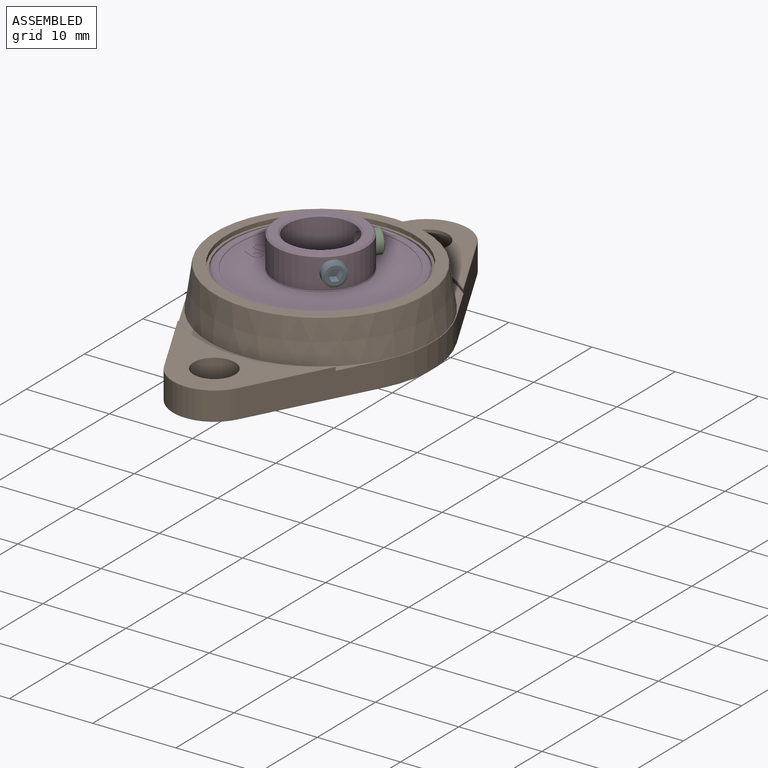
[diagram: assembled view]
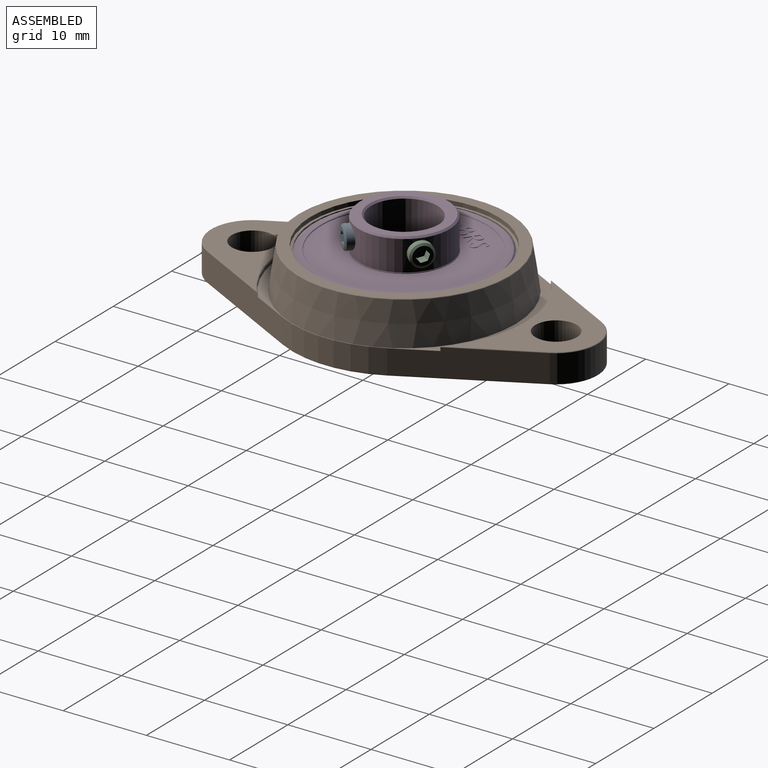
[diagram: assembled view, second angle]
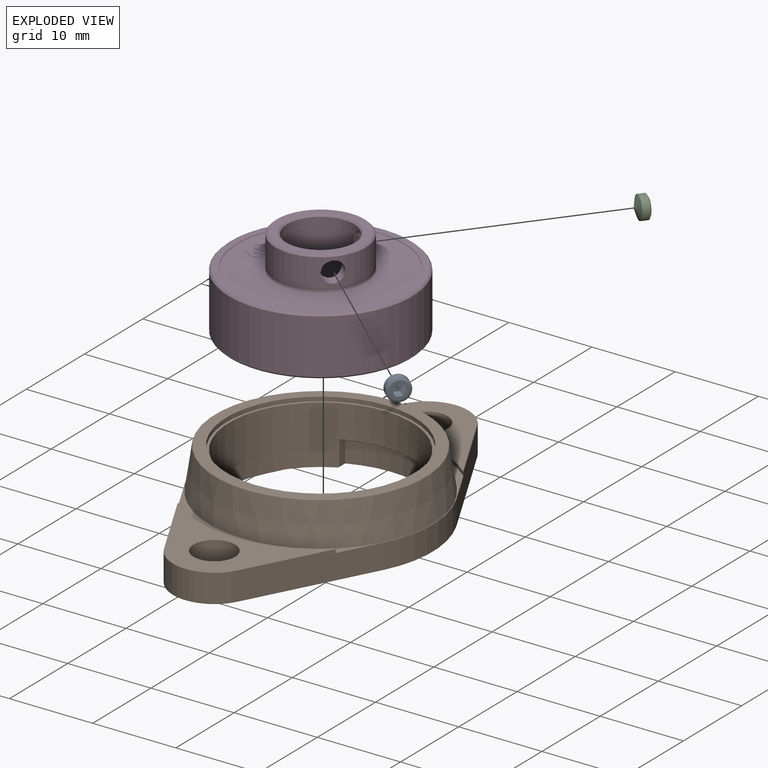
[diagram: exploded view]
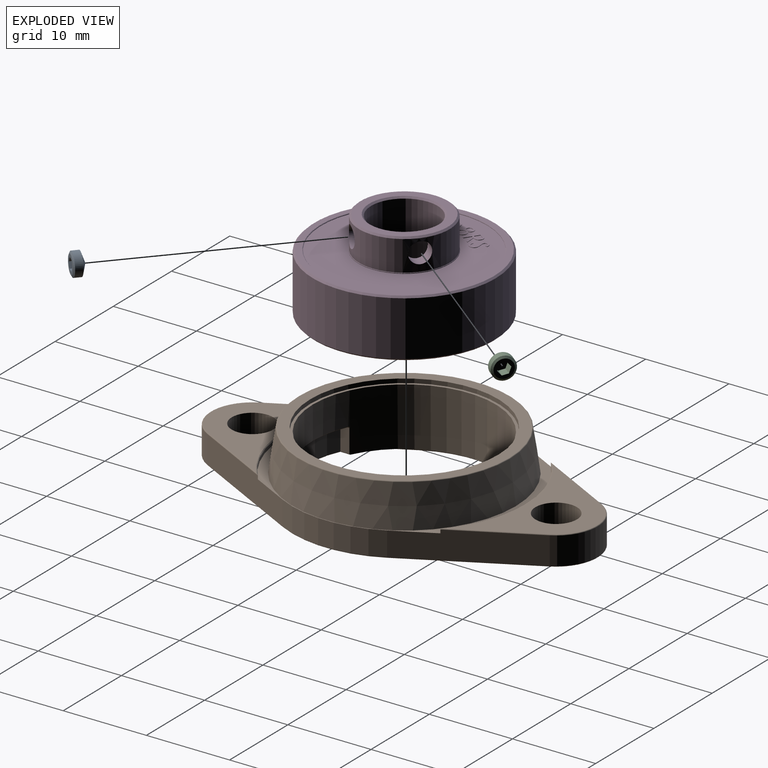
[diagram: exploded view, second angle]
ASSEMBLY  parts=4 mates=3
PART A: 11 faces, bbox 1.5x2.7x2.7 mm
  f0: cylinder r=1.36mm len=2.71mm, axis (-1,0,0), area 7.3mm2, adj f2,f10
  f1: plane 2.21x2.21mm, normal (-1,0,0), area 2.4mm2, adj f3,f4,f5,f6,f7,f8,f10
  f2: cone r=1.36mm half-angle=70deg, axis (-1,0,0), area 6.2mm2, adj f0
  f3: plane 1.2x0.75mm, normal (0,0,1), area 0.9mm2, adj f1,f4,f8,f9
  f4: plane 1.2x0.65mm, normal (0,-0.87,0.5), area 0.9mm2, adj f1,f3,f5,f9
  f5: plane 1.2x0.65mm, normal (0,-0.87,-0.5), area 0.9mm2, adj f1,f4,f6,f9
  f6: plane 1.2x0.75mm, normal (0,0,-1), area 0.9mm2, adj f1,f5,f7,f9
  f7: plane 1.2x0.65mm, normal (0,0.87,-0.5), area 0.9mm2, adj f1,f6,f8,f9
  f8: plane 1.2x0.65mm, normal (0,0.87,0.5), area 0.9mm2, adj f1,f3,f7,f9
  f9: plane 1.5x1.3mm, normal (-1,0,0), area 1.5mm2, adj f3,f4,f5,f6,f7,f8
  f10: cone r=1.1mm half-angle=60deg, axis (1,0,0), area 2.3mm2, adj f0,f1
PART B: 96 faces, bbox 29.2x47.3x8 mm
  f0: cylinder r=11mm len=22mm, axis (0,0,-1), area 422.2mm2, adj f13,f29,f40,f41,f44,f48,f51,f53
  f1: plane 29x27mm, normal (0,0,1), area 53mm2, adj f3,f4,f6,f7,f8,f10,f16,f17
  f2: plane 46.3x26.8mm, normal (0,0,-1), area 219.1mm2, adj f69,f70,f71,f72,f73,f74,f75,f76
  f3: cylinder r=13.5mm len=12.58mm, axis (0,0,-1), area 37.9mm2, adj f1,f4,f10,f75
  f4: plane 14.29x7.52mm, normal (-0.88,-0.47,0), area 51.2mm2, adj f1,f3,f5,f19,f77,f87
  f5: cylinder r=5mm len=8.85mm, axis (0,0,-1), area 35.8mm2, adj f4,f6,f76,f88
  f6: plane 14.29x7.52mm, normal (0.88,-0.47,0), area 51.2mm2, adj f1,f5,f7,f19,f74,f90
  f7: cylinder r=13.5mm len=12.58mm, axis (0,0,-1), area 37.9mm2, adj f1,f6,f8,f72
  f8: plane 14.29x7.52mm, normal (0.88,0.47,0), area 51.2mm2, adj f1,f7,f9,f17,f70,f91
  f9: cylinder r=5mm len=8.85mm, axis (0,0,-1), area 35.8mm2, adj f8,f10,f71,f92
  f10: plane 14.29x7.52mm, normal (-0.88,0.47,0), area 51.2mm2, adj f1,f3,f9,f17,f73,f94
  f11: cylinder r=2.5mm len=5mm, axis (0,0,-1), area 53.4mm2, adj f18,f78
  f12: cylinder r=2.5mm len=5mm, axis (0,0,-1), area 53.4mm2, adj f20,f69
  f13: plane 22.6x22.6mm, normal (0,0,1), area 21mm2, adj f0,f14
  f14: cylinder r=11.3mm len=22.6mm, axis (0,0,-1), area 35.5mm2, adj f13,f15
  f15: plane 25.18x25.18mm, normal (0,0,1), area 96.7mm2, adj f14,f95
  f16: cone r=12.68mm half-angle=8.5deg, axis (0,0,-1), area 407.7mm2, adj f1,f95
  f17: cylinder r=14.5mm len=18.96mm, axis (0,0,-1), area 8.3mm2, adj f1,f8,f10,f93
  f18: plane 18.32x11.78mm, normal (0,0,1), area 79.8mm2, adj f11,f91,f92,f93,f94
  f19: cylinder r=14.5mm len=18.96mm, axis (0,0,-1), area 8.3mm2, adj f1,f4,f6,f89
  f20: plane 18.32x11.78mm, normal (0,0,1), area 79.8mm2, adj f12,f87,f88,f89,f90
  f21: cylinder r=11.75mm len=10.95mm, axis (0,0,-1), area 4.6mm2, adj f22,f28,f29,f82
  f22: plane 11.54x6.07mm, normal (-0.88,-0.47,0), area 5.2mm2, adj f21,f23,f29,f80
  f23: cylinder r=4.5mm len=8.65mm, axis (0,0,-1), area 4.6mm2, adj f22,f24,f29,f79
  f24: plane 11.54x6.07mm, normal (0.88,-0.47,0), area 5.2mm2, adj f23,f25,f29,f81
  f25: cylinder r=11.75mm len=10.95mm, axis (0,0,-1), area 4.6mm2, adj f24,f26,f29,f83
  f26: plane 11.54x6.07mm, normal (0.88,0.47,0), area 5.2mm2, adj f25,f27,f29,f85
  f27: cylinder r=4.5mm len=8.65mm, axis (0,0,-1), area 4.6mm2, adj f26,f28,f29,f86
  f28: plane 11.54x6.07mm, normal (-0.88,0.47,0), area 5.2mm2, adj f21,f27,f29,f84
  f29: plane 34.02x23.5mm, normal (0,0,-1), area 143.6mm2, adj f0,f21,f22,f23,f24,f25,f26,f27
  f30: cylinder r=12mm len=9.44mm, axis (0,0,-1), area 27.2mm2, adj f32,f57,f64,f65
  f31: plane 2.8x0.97mm, normal (-1,0,0), area 2.7mm2, adj f60,f64,f66,f68
  f32: plane 2.8x1.04mm, normal (1,0,0), area 2.9mm2, adj f30,f55,f58,f62
  f33: plane 9.3x1.82mm, normal (0,0,-1), area 7.7mm2, adj f55,f57,f59,f60
  f34: cylinder r=12mm len=9.38mm, axis (0,0,-1), area 27mm2, adj f42,f43,f49,f50
  f35: plane 2.8x0.97mm, normal (1,0,0), area 2.7mm2, adj f39,f40,f41,f42
  f36: plane 2.8x0.97mm, normal (-1,0,0), area 2.7mm2, adj f47,f50,f53,f54
  f37: plane 9.3x1.82mm, normal (0,0,-1), area 7.7mm2, adj f39,f43,f47,f48
  f38: sphere r=0.1mm, area 0mm2, adj f39,f42,f43
  f39: cylinder r=0.1mm len=0.97mm, axis (0,1,0), area 0.1mm2, adj f35,f37,f38,f44
  f40: cylinder r=0.1mm len=2.89mm, axis (0,0,-1), area 0.3mm2, adj f0,f35,f41,f44
  f41: cylinder r=0.1mm len=1.08mm, axis (0,-1,0), area 0.2mm2, adj f0,f29,f35,f40,f45
  f42: cylinder r=0.1mm len=2.8mm, axis (0,0,-1), area 0.3mm2, adj f34,f35,f38,f45
  f43: torus R=11.9mm, axis (0,0,-1), area 1.5mm2, adj f34,f37,f38,f46
  f44: bspline ~0.24x0.22mm, area 0mm2, adj f0,f39,f40,f48
  f45: torus R=0.2mm, axis (0,0,-1), area 0mm2, adj f29,f41,f42,f49
  f46: sphere r=0.1mm, area 0mm2, adj f43,f47,f50
  f47: cylinder r=0.1mm len=0.97mm, axis (0,-1,0), area 0.1mm2, adj f36,f37,f46,f51
  f48: torus R=11.1mm, axis (0,0,-1), area 1.5mm2, adj f0,f37,f44,f51
  f49: torus R=12.1mm, axis (0,0,-1), area 1.5mm2, adj f29,f34,f45,f52
  f50: cylinder r=0.1mm len=2.8mm, axis (0,0,-1), area 0.3mm2, adj f34,f36,f46,f52
  f51: bspline ~0.25x0.22mm, area 0mm2, adj f0,f47,f48,f53
  f52: torus R=0.2mm, axis (0,0,-1), area 0mm2, adj f29,f49,f50,f54
  f53: cylinder r=0.1mm len=2.89mm, axis (0,0,-1), area 0.3mm2, adj f0,f36,f51,f54
  f54: cylinder r=0.1mm len=1.08mm, axis (0,1,0), area 0.2mm2, adj f0,f29,f36,f52,f53
  f55: cylinder r=0.1mm len=1.04mm, axis (0,1,0), area 0.2mm2, adj f32,f33,f56,f57
  f56: bspline ~0.25x0.22mm, area 0mm2, adj f0,f55,f58,f59
  f57: torus R=11.9mm, axis (0,0,-1), area 1.5mm2, adj f30,f33,f55,f61
  f58: cylinder r=0.1mm len=2.89mm, axis (0,0,-1), area 0.3mm2, adj f0,f32,f56,f62
  f59: torus R=11.1mm, axis (0,0,-1), area 1.5mm2, adj f0,f33,f56,f63
  f60: cylinder r=0.1mm len=0.97mm, axis (0,-1,0), area 0.1mm2, adj f31,f33,f61,f63
  f61: sphere r=0.1mm, area 0mm2, adj f57,f60,f64
  f62: cylinder r=0.1mm len=1.21mm, axis (0,-1,0), area 0.2mm2, adj f0,f29,f32,f58,f65
  f63: bspline ~0.24x0.22mm, area 0mm2, adj f0,f59,f60,f66
  f64: cylinder r=0.1mm len=2.8mm, axis (0,0,-1), area 0.3mm2, adj f30,f31,f61,f67
  f65: torus R=12.1mm, axis (0,0,-1), area 1.5mm2, adj f29,f30,f62,f67
  f66: cylinder r=0.1mm len=2.89mm, axis (0,0,-1), area 0.3mm2, adj f0,f31,f63,f68
  f67: torus R=0.2mm, axis (0,0,-1), area 0mm2, adj f29,f64,f65,f68
  f68: cylinder r=0.1mm len=1.08mm, axis (0,1,0), area 0.2mm2, adj f0,f29,f31,f66,f67
  f69: torus R=2.6mm, axis (0,0,1), area 2.5mm2, adj f2,f12
  f70: cylinder r=0.1mm len=14.34mm, axis (-0.47,0.88,0), area 2.5mm2, adj f2,f8,f71,f72
  f71: torus R=4.9mm, axis (0,0,1), area 1.7mm2, adj f2,f9,f70,f73
  f72: torus R=13.4mm, axis (0,0,1), area 2mm2, adj f2,f7,f70,f74
  f73: cylinder r=0.1mm len=14.34mm, axis (-0.47,-0.88,0), area 2.5mm2, adj f2,f10,f71,f75
  f74: cylinder r=0.1mm len=14.34mm, axis (0.47,0.88,0), area 2.5mm2, adj f2,f6,f72,f76
  f75: torus R=13.4mm, axis (0,0,1), area 2mm2, adj f2,f3,f73,f77
  f76: torus R=4.9mm, axis (0,0,1), area 1.7mm2, adj f2,f5,f74,f77
  f77: cylinder r=0.1mm len=14.34mm, axis (0.47,-0.88,0), area 2.5mm2, adj f2,f4,f75,f76
  f78: torus R=2.6mm, axis (0,0,1), area 2.5mm2, adj f2,f11
  f79: torus R=4.4mm, axis (0,0,1), area 1.9mm2, adj f2,f23,f80,f81
  f80: cylinder r=0.1mm len=11.81mm, axis (0.47,-0.88,0), area 2.1mm2, adj f2,f22,f79,f82
  f81: cylinder r=0.1mm len=11.81mm, axis (0.47,0.88,0), area 2.1mm2, adj f2,f24,f79,f83
  f82: torus R=11.85mm, axis (0,0,1), area 1.8mm2, adj f2,f21,f80,f84
  f83: torus R=11.85mm, axis (0,0,1), area 1.8mm2, adj f2,f25,f81,f85
  f84: cylinder r=0.1mm len=11.81mm, axis (-0.47,-0.88,0), area 2.1mm2, adj f2,f28,f82,f86
  f85: cylinder r=0.1mm len=11.81mm, axis (-0.47,0.88,0), area 2.1mm2, adj f2,f26,f83,f86
  f86: torus R=4.4mm, axis (0,0,1), area 1.9mm2, adj f2,f27,f84,f85
  f87: cylinder r=0.1mm len=9.66mm, axis (-0.47,0.88,0), area 1.7mm2, adj f4,f20,f88,f89
  f88: torus R=4.9mm, axis (0,0,1), area 1.7mm2, adj f5,f20,f87,f90
  f89: torus R=14.6mm, axis (0,0,1), area 3.2mm2, adj f19,f20,f87,f90
  f90: cylinder r=0.1mm len=9.66mm, axis (-0.47,-0.88,0), area 1.7mm2, adj f6,f20,f88,f89
  f91: cylinder r=0.1mm len=9.66mm, axis (0.47,-0.88,0), area 1.7mm2, adj f8,f18,f92,f93
  f92: torus R=4.9mm, axis (0,0,1), area 1.7mm2, adj f9,f18,f91,f94
  f93: torus R=14.6mm, axis (0,0,1), area 3.2mm2, adj f17,f18,f91,f94
  f94: cylinder r=0.1mm len=9.66mm, axis (0.47,0.88,0), area 1.7mm2, adj f10,f18,f92,f93
  f95: torus R=12.59mm, axis (0,0,-1), area 11.3mm2, adj f15,f16
PART C: same geometry as A
PART D: 186 faces, bbox 22x10.9x22 mm
  f0: plane 20x20mm, normal (0,-1,0), area 210.8mm2, adj f7,f8,f103,f104,f105,f106,f107,f108
  f1: plane 20x20mm, normal (0,1,0), area 210.8mm2, adj f9,f10,f17,f18,f19,f20,f21,f22
  f2: plane 10.9x10.9mm, normal (0,1,0), area 37.9mm2, adj f14,f100
  f3: plane 21.6x21.6mm, normal (0,-1,0), area 49.1mm2, adj f12,f101
  f4: plane 21.6x21.6mm, normal (0,1,0), area 49.1mm2, adj f13,f102
  f5: cylinder r=11mm len=22mm, axis (0,1,0), area 456.2mm2, adj f101,f102
  f6: cylinder r=4mm len=10.45mm, axis (0,1,0), area 252.7mm2, adj f99,f100,f184,f185
  f7: cylinder r=10mm len=20mm, axis (0,-1,0), area 3.1mm2, adj f0,f12
  f8: cylinder r=5.5mm len=11mm, axis (0,-1,0), area 1.7mm2, adj f0,f11
  f9: cylinder r=10mm len=20mm, axis (0,-1,0), area 3.1mm2, adj f1,f13
  f10: cylinder r=5.5mm len=11mm, axis (0,-1,0), area 1.7mm2, adj f1,f14
  f11: cone r=5.45mm half-angle=45deg, axis (0,1,0), area 2.4mm2, adj f8,f16
  f12: cone r=10mm half-angle=45deg, axis (0,-1,0), area 4.5mm2, adj f3,f7
  f13: cone r=10.05mm half-angle=45deg, axis (0,1,0), area 4.5mm2, adj f4,f9
  f14: cone r=5.5mm half-angle=45deg, axis (0,-1,0), area 2.4mm2, adj f2,f10
  f15: plane 10.5x10.5mm, normal (0,-1,0), area 31.2mm2, adj f98,f99
  f16: cylinder r=5.45mm len=10.9mm, axis (0,1,0), area 115.1mm2, adj f11,f98,f184,f185
  f17: extruded ~0.64x0.36mm, area 0mm2, adj f1,f18,f33,f34
  f18: extruded ~0.59x0.51mm, area 0mm2, adj f1,f17,f19,f34
  f19: extruded ~0.59x0.51mm, area 0mm2, adj f1,f18,f20,f34
  f20: cylinder r=4.18mm len=0.28mm, axis (0,1,0), area 0mm2, adj f1,f19,f21,f34
  f21: extruded ~0.24x0.15mm, area 0mm2, adj f1,f20,f22,f34
  f22: extruded ~0.28x0.25mm, area 0mm2, adj f1,f21,f23,f34
  f23: extruded ~0.38x0.21mm, area 0mm2, adj f1,f22,f24,f34
  f24: plane 0.15x0.14mm, normal (0.73,0,-0.68), area 0mm2, adj f1,f23,f25,f34
  f25: extruded ~0.55x0.27mm, area 0mm2, adj f1,f24,f26,f34
  f26: extruded ~0.51x0.43mm, area 0mm2, adj f1,f25,f27,f34
  f27: cylinder r=0.5mm len=0.29mm, axis (0,-1,0), area 0mm2, adj f1,f26,f28,f34
  f28: extruded ~0.33x0.24mm, area 0mm2, adj f1,f27,f29,f34
  f29: extruded ~0.37x0.28mm, area 0mm2, adj f1,f28,f30,f34
  f30: cylinder r=0.34mm len=0.19mm, axis (0,1,0), area 0mm2, adj f1,f29,f31,f34
  f31: extruded ~0.37x0.33mm, area 0mm2, adj f1,f30,f32,f34
  f32: extruded ~0.44x0.29mm, area 0mm2, adj f1,f31,f33,f34
  f33: plane 0.16x0.12mm, normal (-0.8,0,0.6), area 0mm2, adj f1,f17,f32,f34
  f34: plane 2.08x1.14mm, normal (0,1,0), area 0.8mm2, adj f17,f18,f19,f20,f21,f22,f23,f24
  f35: plane 2.13x1.84mm, normal (0,1,0), area 1.1mm2, adj f36,f37,f38,f39,f40,f41,f42,f43
  f36: plane 1.88x0.64mm, normal (0.32,0,0.95), area 0.1mm2, adj f1,f35,f37,f46
  f37: plane 0.19x0.06mm, normal (0.95,0,-0.32), area 0mm2, adj f1,f35,f36,f38
  f38: plane 0.87x0.3mm, normal (-0.32,0,-0.95), area 0mm2, adj f1,f35,f37,f39
  f39: plane 0.11x0.05mm, normal (0.95,0,-0.32), area 0mm2, adj f1,f35,f38,f40
  f40: plane 0.97x0.65mm, normal (0.83,0,0.55), area 0.1mm2, adj f1,f35,f39,f41
  f41: plane 0.23x0.08mm, normal (0.95,0,-0.32), area 0mm2, adj f1,f35,f40,f42
  f42: plane 0.97x0.64mm, normal (-0.83,0,-0.55), area 0.1mm2, adj f1,f35,f41,f43
  f43: extruded ~0.73x0.51mm, area 0mm2, adj f1,f35,f42,f44
  f44: extruded ~0.54x0.35mm, area 0mm2, adj f1,f35,f43,f45
  f45: extruded ~0.43x0.12mm, area 0mm2, adj f1,f35,f44,f46
  f46: plane 0.37x0.13mm, normal (-0.95,0,0.32), area 0mm2, adj f1,f35,f36,f45
  f47: plane 0.33x0.11mm, normal (0.95,0,-0.32), area 0mm2, adj f35,f48,f51,f52
  f48: plane 0.64x0.22mm, normal (-0.32,0,-0.95), area 0mm2, adj f35,f47,f49,f52
  f49: plane 0.32x0.11mm, normal (-0.95,0,0.31), area 0mm2, adj f35,f48,f50,f52
  f50: extruded ~0.48x0.38mm, area 0mm2, adj f35,f49,f51,f52
  f51: extruded ~0.57x0.22mm, area 0mm2, adj f35,f47,f50,f52
  f52: plane 0.92x0.81mm, normal (0,1,0), area 0.5mm2, adj f47,f48,f49,f50,f51
  f53: plane 1.99x1.76mm, normal (0,1,0), area 1.1mm2, adj f54,f55,f56,f57,f58,f59,f60,f61
  f54: extruded ~0.51x0.08mm, area 0mm2, adj f1,f53,f55,f62
  f55: extruded ~0.77x0.22mm, area 0mm2, adj f1,f53,f54,f56
  f56: extruded ~0.76x0.28mm, area 0mm2, adj f1,f53,f55,f57
  f57: extruded ~0.48x0.2mm, area 0mm2, adj f1,f53,f56,f58
  f58: extruded ~0.66x0.11mm, area 0mm2, adj f1,f53,f57,f59
  f59: extruded ~0.9x0.27mm, area 0.1mm2, adj f1,f53,f58,f60
  f60: extruded ~0.47x0.32mm, area 0mm2, adj f1,f53,f59,f61
  f61: cylinder r=0.61mm len=0.42mm, axis (0,-1,0), area 0mm2, adj f1,f53,f60,f62
  f62: extruded ~0.6x0.23mm, area 0mm2, adj f1,f53,f54,f61
  f63: extruded ~0.5x0.14mm, area 0mm2, adj f53,f64,f66,f71
  f64: extruded ~0.49x0.18mm, area 0mm2, adj f53,f63,f65,f71
  f65: extruded ~0.52x0.14mm, area 0mm2, adj f53,f64,f66,f71
  f66: extruded ~0.5x0.17mm, area 0mm2, adj f53,f63,f65,f71
  f67: extruded ~0.62x0.18mm, area 0mm2, adj f53,f68,f70,f72
  f68: extruded ~0.64x0.23mm, area 0mm2, adj f53,f67,f69,f72
  f69: extruded ~0.62x0.18mm, area 0mm2, adj f53,f68,f70,f72
  f70: extruded ~0.62x0.23mm, area 0mm2, adj f53,f67,f69,f72
  f71: plane 0.74x0.71mm, normal (0,1,0), area 0.4mm2, adj f63,f64,f65,f66
  f72: plane 0.92x0.9mm, normal (0,1,0), area 0.6mm2, adj f67,f68,f69,f70
  f73: plane 1.86x1.81mm, normal (0,1,0), area 1mm2, adj f74,f75,f76,f77,f78,f79,f80,f81
  f74: extruded ~1.23x0.41mm, area 0.1mm2, adj f1,f73,f75,f77
  f75: extruded ~1.22x0.46mm, area 0.1mm2, adj f1,f73,f74,f76
  f76: extruded ~1.24x0.4mm, area 0.1mm2, adj f1,f73,f75,f77
  f77: extruded ~1.21x0.48mm, area 0.1mm2, adj f1,f73,f74,f76
  f78: extruded ~0.95x0.41mm, area 0.1mm2, adj f73,f79,f82,f83
  f79: extruded ~0.97x0.36mm, area 0.1mm2, adj f73,f78,f80,f83
  f80: extruded ~0.55x0.11mm, area 0mm2, adj f73,f79,f81,f83
  f81: extruded ~0.4x0.33mm, area 0mm2, adj f73,f80,f82,f83
  f82: extruded ~0.98x0.35mm, area 0.1mm2, adj f73,f78,f81,f83
  f83: plane 1.49x1.43mm, normal (0,1,0), area 1.4mm2, adj f78,f79,f80,f81,f82
  f84: plane 1.79x1.61mm, normal (0,1,0), area 0.8mm2, adj f85,f86,f87,f88,f89,f90,f91,f92
  f85: plane 0.96x0.49mm, normal (0.46,0,0.89), area 0.1mm2, adj f1,f84,f86,f92
  f86: extruded ~0.48x0.4mm, area 0mm2, adj f1,f84,f85,f87
  f87: extruded ~0.82x0.31mm, area 0mm2, adj f1,f84,f86,f88
  f88: extruded ~0.84x0.31mm, area 0mm2, adj f1,f84,f87,f89
  f89: extruded ~0.79x0.29mm, area 0mm2, adj f1,f84,f88,f90
  f90: cylinder r=0.63mm len=0.19mm, axis (0,-1,0), area 0mm2, adj f1,f84,f89,f91
  f91: plane 0.86x0.45mm, normal (-0.46,0,-0.89), area 0mm2, adj f1,f84,f90,f92
  f92: plane 0.17x0.09mm, normal (-0.88,0,0.47), area 0mm2, adj f1,f84,f85,f91
  f93: extruded ~0.57x0.22mm, area 0mm2, adj f84,f94,f96,f97
  f94: cylinder r=0.41mm len=0.57mm, axis (0,1,0), area 0mm2, adj f84,f93,f95,f97
  f95: cylinder r=0.41mm len=0.57mm, axis (0,1,0), area 0mm2, adj f84,f94,f96,f97
  f96: cylinder r=0.42mm len=0.57mm, axis (0,1,0), area 0mm2, adj f84,f93,f95,f97
  f97: plane 0.83x0.83mm, normal (0,1,0), area 0.5mm2, adj f93,f94,f95,f96
  f98: cone r=5.25mm half-angle=45deg, axis (0,1,0), area 9.5mm2, adj f15,f16
  f99: cone r=4mm half-angle=45deg, axis (0,-1,0), area 7.3mm2, adj f6,f15
  f100: cone r=4.2mm half-angle=45deg, axis (0,1,0), area 7.3mm2, adj f2,f6
  f101: cone r=10.8mm half-angle=45deg, axis (0,1,0), area 19.4mm2, adj f3,f5
  f102: cone r=11mm half-angle=45deg, axis (0,-1,0), area 19.4mm2, adj f4,f5
  f103: extruded ~0.64x0.36mm, area 0mm2, adj f0,f104,f119,f120
  f104: extruded ~0.59x0.51mm, area 0mm2, adj f0,f103,f105,f120
  f105: extruded ~0.59x0.51mm, area 0mm2, adj f0,f104,f106,f120
  f106: cylinder r=4.18mm len=0.28mm, axis (0,-1,0), area 0mm2, adj f0,f105,f107,f120
  f107: extruded ~0.24x0.15mm, area 0mm2, adj f0,f106,f108,f120
  f108: extruded ~0.28x0.25mm, area 0mm2, adj f0,f107,f109,f120
  f109: extruded ~0.38x0.21mm, area 0mm2, adj f0,f108,f110,f120
  f110: plane 0.15x0.14mm, normal (-0.73,0,-0.68), area 0mm2, adj f0,f109,f111,f120
  f111: extruded ~0.55x0.27mm, area 0mm2, adj f0,f110,f112,f120
  f112: extruded ~0.51x0.43mm, area 0mm2, adj f0,f111,f113,f120
  f113: cylinder r=0.5mm len=0.29mm, axis (0,1,0), area 0mm2, adj f0,f112,f114,f120
  f114: extruded ~0.33x0.24mm, area 0mm2, adj f0,f113,f115,f120
  f115: extruded ~0.37x0.28mm, area 0mm2, adj f0,f114,f116,f120
  f116: cylinder r=0.34mm len=0.19mm, axis (0,-1,0), area 0mm2, adj f0,f115,f117,f120
  f117: extruded ~0.37x0.33mm, area 0mm2, adj f0,f116,f118,f120
  f118: extruded ~0.44x0.29mm, area 0mm2, adj f0,f117,f119,f120
  f119: plane 0.16x0.12mm, normal (0.8,0,0.6), area 0mm2, adj f0,f103,f118,f120
  f120: plane 2.08x1.14mm, normal (0,-1,0), area 0.8mm2, adj f103,f104,f105,f106,f107,f108,f109,f110
  f121: plane 2.13x1.84mm, normal (0,-1,0), area 1.1mm2, adj f122,f123,f124,f125,f126,f127,f128,f129
  f122: plane 1.88x0.64mm, normal (-0.32,0,0.95), area 0.1mm2, adj f0,f121,f123,f132
  f123: plane 0.19x0.06mm, normal (-0.95,0,-0.32), area 0mm2, adj f0,f121,f122,f124
  f124: plane 0.87x0.3mm, normal (0.32,0,-0.95), area 0mm2, adj f0,f121,f123,f125
  f125: plane 0.11x0.05mm, normal (-0.95,0,-0.32), area 0mm2, adj f0,f121,f124,f126
  f126: plane 0.97x0.65mm, normal (-0.83,0,0.55), area 0.1mm2, adj f0,f121,f125,f127
  f127: plane 0.23x0.08mm, normal (-0.95,0,-0.32), area 0mm2, adj f0,f121,f126,f128
  f128: plane 0.97x0.64mm, normal (0.83,0,-0.55), area 0.1mm2, adj f0,f121,f127,f129
  f129: extruded ~0.73x0.51mm, area 0mm2, adj f0,f121,f128,f130
  f130: extruded ~0.54x0.35mm, area 0mm2, adj f0,f121,f129,f131
  f131: extruded ~0.43x0.12mm, area 0mm2, adj f0,f121,f130,f132
  f132: plane 0.37x0.13mm, normal (0.95,0,0.32), area 0mm2, adj f0,f121,f122,f131
  f133: plane 0.33x0.11mm, normal (-0.95,0,-0.32), area 0mm2, adj f121,f134,f137,f138
  f134: plane 0.64x0.22mm, normal (0.32,0,-0.95), area 0mm2, adj f121,f133,f135,f138
  f135: plane 0.32x0.11mm, normal (0.95,0,0.31), area 0mm2, adj f121,f134,f136,f138
  f136: extruded ~0.48x0.38mm, area 0mm2, adj f121,f135,f137,f138
  f137: extruded ~0.57x0.22mm, area 0mm2, adj f121,f133,f136,f138
  f138: plane 0.92x0.81mm, normal (0,-1,0), area 0.5mm2, adj f133,f134,f135,f136,f137
  f139: plane 1.99x1.76mm, normal (0,-1,0), area 1.1mm2, adj f140,f141,f142,f143,f144,f145,f146,f147
  f140: extruded ~0.51x0.08mm, area 0mm2, adj f0,f139,f141,f148
  f141: extruded ~0.77x0.22mm, area 0mm2, adj f0,f139,f140,f142
  f142: extruded ~0.76x0.28mm, area 0mm2, adj f0,f139,f141,f143
  f143: extruded ~0.48x0.2mm, area 0mm2, adj f0,f139,f142,f144
  f144: extruded ~0.66x0.11mm, area 0mm2, adj f0,f139,f143,f145
  f145: extruded ~0.9x0.27mm, area 0.1mm2, adj f0,f139,f144,f146
  f146: extruded ~0.47x0.32mm, area 0mm2, adj f0,f139,f145,f147
  f147: cylinder r=0.61mm len=0.42mm, axis (0,1,0), area 0mm2, adj f0,f139,f146,f148
  f148: extruded ~0.6x0.23mm, area 0mm2, adj f0,f139,f140,f147
  f149: extruded ~0.5x0.14mm, area 0mm2, adj f139,f150,f152,f158
  f150: extruded ~0.49x0.18mm, area 0mm2, adj f139,f149,f151,f158
  f151: extruded ~0.52x0.14mm, area 0mm2, adj f139,f150,f152,f158
  f152: extruded ~0.5x0.17mm, area 0mm2, adj f139,f149,f151,f158
  f153: extruded ~0.62x0.18mm, area 0mm2, adj f139,f154,f156,f157
  f154: extruded ~0.64x0.23mm, area 0mm2, adj f139,f153,f155,f157
  f155: extruded ~0.62x0.18mm, area 0mm2, adj f139,f154,f156,f157
  f156: extruded ~0.62x0.23mm, area 0mm2, adj f139,f153,f155,f157
  f157: plane 0.92x0.9mm, normal (0,-1,0), area 0.6mm2, adj f153,f154,f155,f156
  f158: plane 0.74x0.71mm, normal (0,-1,0), area 0.4mm2, adj f149,f150,f151,f152
  f159: plane 1.86x1.81mm, normal (0,-1,0), area 1mm2, adj f160,f161,f162,f163,f164,f165,f166,f167
  f160: extruded ~1.23x0.41mm, area 0.1mm2, adj f0,f159,f161,f163
  f161: extruded ~1.22x0.46mm, area 0.1mm2, adj f0,f159,f160,f162
  f162: extruded ~1.24x0.4mm, area 0.1mm2, adj f0,f159,f161,f163
  f163: extruded ~1.21x0.48mm, area 0.1mm2, adj f0,f159,f160,f162
  f164: extruded ~0.95x0.41mm, area 0.1mm2, adj f159,f165,f168,f169
  f165: extruded ~0.97x0.36mm, area 0.1mm2, adj f159,f164,f166,f169
  f166: extruded ~0.55x0.11mm, area 0mm2, adj f159,f165,f167,f169
  f167: extruded ~0.4x0.33mm, area 0mm2, adj f159,f166,f168,f169
  f168: extruded ~0.98x0.35mm, area 0.1mm2, adj f159,f164,f167,f169
  f169: plane 1.49x1.43mm, normal (0,-1,0), area 1.4mm2, adj f164,f165,f166,f167,f168
  f170: plane 1.79x1.61mm, normal (0,-1,0), area 0.8mm2, adj f171,f172,f173,f174,f175,f176,f177,f178
  f171: plane 0.96x0.49mm, normal (-0.46,0,0.89), area 0.1mm2, adj f0,f170,f172,f178
  f172: extruded ~0.48x0.4mm, area 0mm2, adj f0,f170,f171,f173
  f173: extruded ~0.82x0.31mm, area 0mm2, adj f0,f170,f172,f174
  f174: extruded ~0.84x0.31mm, area 0mm2, adj f0,f170,f173,f175
  f175: extruded ~0.79x0.29mm, area 0mm2, adj f0,f170,f174,f176
  f176: cylinder r=0.63mm len=0.19mm, axis (0,1,0), area 0mm2, adj f0,f170,f175,f177
  f177: plane 0.86x0.45mm, normal (0.46,0,-0.89), area 0mm2, adj f0,f170,f176,f178
  f178: plane 0.17x0.09mm, normal (0.88,0,0.47), area 0mm2, adj f0,f170,f171,f177
  f179: extruded ~0.57x0.22mm, area 0mm2, adj f170,f180,f182,f183
  f180: cylinder r=0.41mm len=0.57mm, axis (0,-1,0), area 0mm2, adj f170,f179,f181,f183
  f181: cylinder r=0.41mm len=0.57mm, axis (0,-1,0), area 0mm2, adj f170,f180,f182,f183
  f182: cylinder r=0.42mm len=0.57mm, axis (0,-1,0), area 0mm2, adj f170,f179,f181,f183
  f183: plane 0.83x0.83mm, normal (0,-1,0), area 0.5mm2, adj f179,f180,f181,f182
  f184: cylinder r=1.25mm len=2.8mm, axis (0.25,0,-0.97), area 11.8mm2, adj f6,f16
  f185: cylinder r=1.25mm len=2.73mm, axis (-0.98,0,-0.19), area 11.4mm2, adj f6,f16
PLACE A rot(axis=(0,0,1),138.2deg) t=(7.89,-54.73,3.35)mm
PLACE B t=(2.08,-49.54,-6.12)mm fixed
PLACE C rot(axis=(-0.04,0.09,-0.99),128.3deg) t=(6.88,-43.41,3.44)mm
PLACE D rot(axis=(-0.33,-0.67,0.67),143.6deg) t=(2.08,-49.54,-5.62)mm
MATE revolute C.f0 <-> D.f184  axis (0.62,0.79,0) through (5.03,-45.77,3.44)mm
MATE revolute D.f5 <-> B.f48  axis (0,0,-1) through (2.08,-49.54,-5.62)mm
MATE revolute A.f0 <-> D.f185  axis (0.75,-0.67,0) through (5.65,-52.73,3.35)mm
